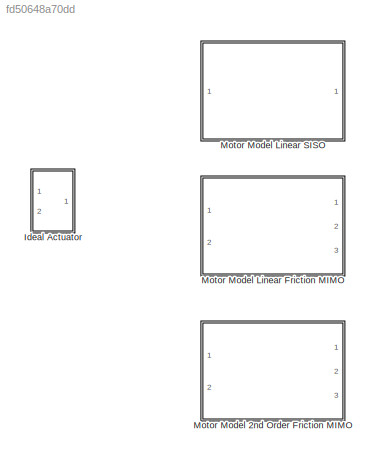
MODEL slx_fd50648a70dd
KIND library
CONFIG AbsTol = auto
CONFIG FixedStep = auto
CONFIG MaxStep = auto
CONFIG MinStep = auto
CONFIG RelTol = 1e-3
CONFIG SampleTimeConstraint = Unconstrained
CONFIG Solver = VariableStepAuto
CONFIG SolverMode = Auto
CONFIG SolverName = VariableStepAuto
CONFIG StartTime = 0.0
CONFIG StopTime = 10.0
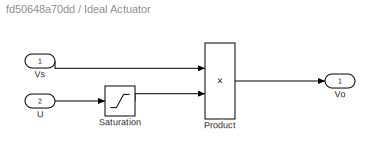
BLOCK [SubSystem] Ideal Actuator
  Ports = [2, 1]
  RequestExecContextInheritance = off
  Variant = off
BLOCK [Product] Ideal Actuator/Product
  InputSameDT = off
  OutDataTypeStr = Inherit: Inherit via internal rule
  Ports = [2, 1]
  RndMeth = Floor
  SaturateOnIntegerOverflow = off
BLOCK [Saturate] Ideal Actuator/Saturation
  InputPortMap = u0
  LowerLimit = -1
  Ports = [1, 1]
  UpperLimit = 1
BLOCK [Inport] Ideal Actuator/U
  IconDisplay = Port number
  Port = 2
BLOCK [Outport] Ideal Actuator/Vo
  IconDisplay = Port number
BLOCK [Inport] Ideal Actuator/Vs
  IconDisplay = Port number
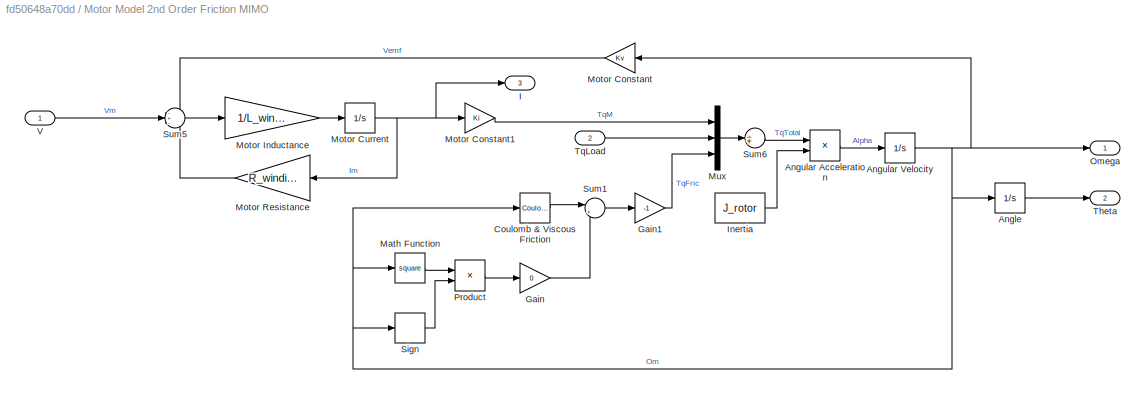
BLOCK [SubSystem] Motor Model 2nd Order Friction MIMO
  Ports = [2, 3]
  RequestExecContextInheritance = off
  Variant = off
BLOCK [Integrator] Motor Model 2nd Order Friction MIMO/Angle
  Ports = [1, 1]
  WrapState = on
  WrappedStateLowerValue = 0
  WrappedStateUpperValue = 2*pi
BLOCK [Product] Motor Model 2nd Order Friction MIMO/Angular Acceleration
  InputSameDT = off
  Inputs = */
  OutDataTypeStr = Inherit: Inherit via internal rule
  Ports = [2, 1]
  RndMeth = Floor
  SaturateOnIntegerOverflow = off
BLOCK [Integrator] Motor Model 2nd Order Friction MIMO/Angular Velocity
  AttributesFormatString = y0: %<InitialCondition>
  InitialCondition = Om_initial
  Ports = [1, 1]
BLOCK [Reference] Motor Model 2nd Order Friction MIMO/Coulomb & Viscous Friction  REF=simulink/Discontinuities/Coulomb &
Viscous Friction
  Ports = [1, 1]
  SourceBlock = simulink/Discontinuities/Coulomb &\nViscous Friction
  SourceType = Coulombic and Viscous Friction
BLOCK [Gain] Motor Model 2nd Order Friction MIMO/Gain
  Gain = 0
  OutDataTypeStr = Inherit: Inherit via internal rule
  ParamDataTypeStr = Inherit: Inherit via internal rule
  SaturateOnIntegerOverflow = off
BLOCK [Gain] Motor Model 2nd Order Friction MIMO/Gain1
  Gain = -1
  OutDataTypeStr = Inherit: Inherit via internal rule
  ParamDataTypeStr = Inherit: Inherit via internal rule
  SaturateOnIntegerOverflow = off
BLOCK [Outport] Motor Model 2nd Order Friction MIMO/I
  IconDisplay = Port number
  Port = 3
BLOCK [Constant] Motor Model 2nd Order Friction MIMO/Inertia
  Value = J_rotor
BLOCK [Math] Motor Model 2nd Order Friction MIMO/Math Function
  Operator = square
  Ports = [1, 1]
BLOCK [Gain] Motor Model 2nd Order Friction MIMO/Motor Constant
  Gain = Kv
  OutDataTypeStr = Inherit: Inherit via internal rule
  ParamDataTypeStr = Inherit: Inherit via internal rule
  SaturateOnIntegerOverflow = off
BLOCK [Gain] Motor Model 2nd Order Friction MIMO/Motor Constant1
  Gain = Ki
  OutDataTypeStr = Inherit: Inherit via internal rule
  ParamDataTypeStr = Inherit: Inherit via internal rule
  SaturateOnIntegerOverflow = off
BLOCK [Integrator] Motor Model 2nd Order Friction MIMO/Motor Current
  AttributesFormatString = y0: %<InitialCondition>
  InitialCondition = I_initial
  Ports = [1, 1]
BLOCK [Gain] Motor Model 2nd Order Friction MIMO/Motor Inductance
  Gain = 1/L_winding
  OutDataTypeStr = Inherit: Inherit via internal rule
  ParamDataTypeStr = Inherit: Inherit via internal rule
  SaturateOnIntegerOverflow = off
BLOCK [Gain] Motor Model 2nd Order Friction MIMO/Motor Resistance
  Gain = R_winding
  OutDataTypeStr = Inherit: Inherit via internal rule
  ParamDataTypeStr = Inherit: Inherit via internal rule
  SaturateOnIntegerOverflow = off
BLOCK [Mux] Motor Model 2nd Order Friction MIMO/Mux
  DisplayOption = bar
  Inputs = 3
  Ports = [3, 1]
BLOCK [Outport] Motor Model 2nd Order Friction MIMO/Omega
  IconDisplay = Port number
BLOCK [Product] Motor Model 2nd Order Friction MIMO/Product
  InputSameDT = off
  OutDataTypeStr = Inherit: Inherit via internal rule
  Ports = [2, 1]
  RndMeth = Floor
  SaturateOnIntegerOverflow = off
BLOCK [Signum] Motor Model 2nd Order Friction MIMO/Sign
BLOCK [Sum] Motor Model 2nd Order Friction MIMO/Sum1
  IconShape = round
  InputSameDT = off
  Inputs = |++
  OutDataTypeStr = Inherit: Inherit via internal rule
  Ports = [2, 1]
  SaturateOnIntegerOverflow = off
BLOCK [Sum] Motor Model 2nd Order Friction MIMO/Sum5
  IconShape = round
  InputSameDT = off
  Inputs = -+-
  OutDataTypeStr = Inherit: Inherit via internal rule
  Ports = [3, 1]
  SaturateOnIntegerOverflow = off
BLOCK [Sum] Motor Model 2nd Order Friction MIMO/Sum6
  IconShape = round
  InputSameDT = off
  Inputs = 1
  OutDataTypeStr = Inherit: Inherit via internal rule
  Ports = [1, 1]
  SaturateOnIntegerOverflow = off
BLOCK [Outport] Motor Model 2nd Order Friction MIMO/Theta
  IconDisplay = Port number
  Port = 2
BLOCK [Inport] Motor Model 2nd Order Friction MIMO/TqLoad
  IconDisplay = Port number
  Port = 2
BLOCK [Inport] Motor Model 2nd Order Friction MIMO/V
  IconDisplay = Port number
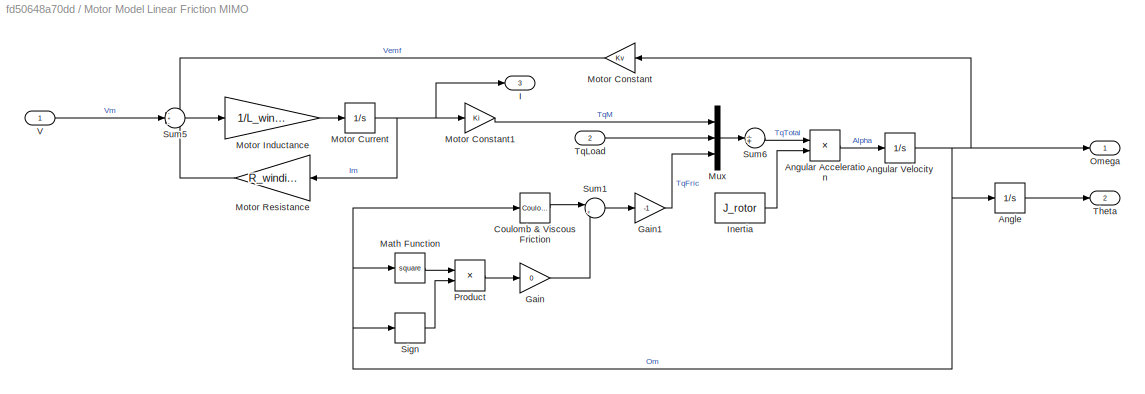
BLOCK [SubSystem] Motor Model Linear Friction MIMO
  Ports = [2, 3]
  RequestExecContextInheritance = off
  Variant = off
BLOCK [Integrator] Motor Model Linear Friction MIMO/Angle
  Ports = [1, 1]
  WrapState = on
BLOCK [Product] Motor Model Linear Friction MIMO/Angular Acceleration
  InputSameDT = off
  Inputs = */
  OutDataTypeStr = Inherit: Inherit via internal rule
  Ports = [2, 1]
  RndMeth = Floor
  SaturateOnIntegerOverflow = off
BLOCK [Integrator] Motor Model Linear Friction MIMO/Angular Velocity
  AttributesFormatString = y0: %<InitialCondition>
  InitialCondition = Om_initial
  Ports = [1, 1]
BLOCK [Reference] Motor Model Linear Friction MIMO/Coulomb & Viscous Friction  REF=simulink/Discontinuities/Coulomb &
Viscous Friction
  Ports = [1, 1]
  SourceBlock = simulink/Discontinuities/Coulomb &\nViscous Friction
  SourceType = Coulombic and Viscous Friction
BLOCK [Gain] Motor Model Linear Friction MIMO/Gain
  Gain = 0
  OutDataTypeStr = Inherit: Inherit via internal rule
  ParamDataTypeStr = Inherit: Inherit via internal rule
  SaturateOnIntegerOverflow = off
BLOCK [Gain] Motor Model Linear Friction MIMO/Gain1
  Gain = -1
  OutDataTypeStr = Inherit: Inherit via internal rule
  ParamDataTypeStr = Inherit: Inherit via internal rule
  SaturateOnIntegerOverflow = off
BLOCK [Outport] Motor Model Linear Friction MIMO/I
  IconDisplay = Port number
  Port = 3
BLOCK [Constant] Motor Model Linear Friction MIMO/Inertia
  Value = J_rotor
BLOCK [Math] Motor Model Linear Friction MIMO/Math Function
  Operator = square
  Ports = [1, 1]
BLOCK [Gain] Motor Model Linear Friction MIMO/Motor Constant
  Gain = Kv
  OutDataTypeStr = Inherit: Inherit via internal rule
  ParamDataTypeStr = Inherit: Inherit via internal rule
  SaturateOnIntegerOverflow = off
BLOCK [Gain] Motor Model Linear Friction MIMO/Motor Constant1
  Gain = Ki
  OutDataTypeStr = Inherit: Inherit via internal rule
  ParamDataTypeStr = Inherit: Inherit via internal rule
  SaturateOnIntegerOverflow = off
BLOCK [Integrator] Motor Model Linear Friction MIMO/Motor Current
  AttributesFormatString = y0: %<InitialCondition>
  InitialCondition = I_initial
  Ports = [1, 1]
BLOCK [Gain] Motor Model Linear Friction MIMO/Motor Inductance
  Gain = 1/L_winding
  OutDataTypeStr = Inherit: Inherit via internal rule
  ParamDataTypeStr = Inherit: Inherit via internal rule
  SaturateOnIntegerOverflow = off
BLOCK [Gain] Motor Model Linear Friction MIMO/Motor Resistance
  Gain = R_winding
  OutDataTypeStr = Inherit: Inherit via internal rule
  ParamDataTypeStr = Inherit: Inherit via internal rule
  SaturateOnIntegerOverflow = off
BLOCK [Mux] Motor Model Linear Friction MIMO/Mux
  DisplayOption = bar
  Inputs = 3
  Ports = [3, 1]
BLOCK [Outport] Motor Model Linear Friction MIMO/Omega
  IconDisplay = Port number
BLOCK [Product] Motor Model Linear Friction MIMO/Product
  InputSameDT = off
  OutDataTypeStr = Inherit: Inherit via internal rule
  Ports = [2, 1]
  RndMeth = Floor
  SaturateOnIntegerOverflow = off
BLOCK [Signum] Motor Model Linear Friction MIMO/Sign
BLOCK [Sum] Motor Model Linear Friction MIMO/Sum1
  IconShape = round
  InputSameDT = off
  Inputs = |++
  OutDataTypeStr = Inherit: Inherit via internal rule
  Ports = [2, 1]
  SaturateOnIntegerOverflow = off
BLOCK [Sum] Motor Model Linear Friction MIMO/Sum5
  IconShape = round
  InputSameDT = off
  Inputs = -+-
  OutDataTypeStr = Inherit: Inherit via internal rule
  Ports = [3, 1]
  SaturateOnIntegerOverflow = off
BLOCK [Sum] Motor Model Linear Friction MIMO/Sum6
  IconShape = round
  InputSameDT = off
  Inputs = 1
  OutDataTypeStr = Inherit: Inherit via internal rule
  Ports = [1, 1]
  SaturateOnIntegerOverflow = off
BLOCK [Outport] Motor Model Linear Friction MIMO/Theta
  IconDisplay = Port number
  Port = 2
BLOCK [Inport] Motor Model Linear Friction MIMO/TqLoad
  IconDisplay = Port number
  Port = 2
BLOCK [Inport] Motor Model Linear Friction MIMO/V
  IconDisplay = Port number
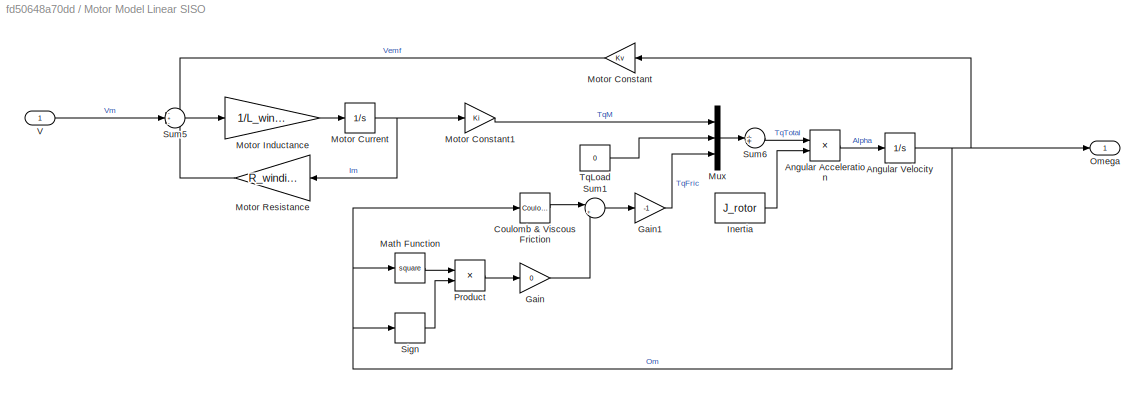
BLOCK [SubSystem] Motor Model Linear SISO
  Ports = [1, 1]
  RequestExecContextInheritance = off
  Variant = off
BLOCK [Product] Motor Model Linear SISO/Angular Acceleration
  InputSameDT = off
  Inputs = */
  OutDataTypeStr = Inherit: Inherit via internal rule
  Ports = [2, 1]
  RndMeth = Floor
  SaturateOnIntegerOverflow = off
BLOCK [Integrator] Motor Model Linear SISO/Angular Velocity
  AttributesFormatString = y0: %<InitialCondition>
  InitialCondition = Om_initial
  Ports = [1, 1]
BLOCK [Reference] Motor Model Linear SISO/Coulomb & Viscous Friction  REF=simulink/Discontinuities/Coulomb &
Viscous Friction
  Ports = [1, 1]
  SourceBlock = simulink/Discontinuities/Coulomb &\nViscous Friction
  SourceType = Coulombic and Viscous Friction
BLOCK [Gain] Motor Model Linear SISO/Gain
  Gain = 0
  OutDataTypeStr = Inherit: Inherit via internal rule
  ParamDataTypeStr = Inherit: Inherit via internal rule
  SaturateOnIntegerOverflow = off
BLOCK [Gain] Motor Model Linear SISO/Gain1
  Gain = -1
  OutDataTypeStr = Inherit: Inherit via internal rule
  ParamDataTypeStr = Inherit: Inherit via internal rule
  SaturateOnIntegerOverflow = off
BLOCK [Constant] Motor Model Linear SISO/Inertia
  Value = J_rotor
BLOCK [Math] Motor Model Linear SISO/Math Function
  Operator = square
  Ports = [1, 1]
BLOCK [Gain] Motor Model Linear SISO/Motor Constant
  Gain = Kv
  OutDataTypeStr = Inherit: Inherit via internal rule
  ParamDataTypeStr = Inherit: Inherit via internal rule
  SaturateOnIntegerOverflow = off
BLOCK [Gain] Motor Model Linear SISO/Motor Constant1
  Gain = Ki
  OutDataTypeStr = Inherit: Inherit via internal rule
  ParamDataTypeStr = Inherit: Inherit via internal rule
  SaturateOnIntegerOverflow = off
BLOCK [Integrator] Motor Model Linear SISO/Motor Current
  AttributesFormatString = y0: %<InitialCondition>
  InitialCondition = I_initial
  Ports = [1, 1]
BLOCK [Gain] Motor Model Linear SISO/Motor Inductance
  Gain = 1/L_winding
  OutDataTypeStr = Inherit: Inherit via internal rule
  ParamDataTypeStr = Inherit: Inherit via internal rule
  SaturateOnIntegerOverflow = off
BLOCK [Gain] Motor Model Linear SISO/Motor Resistance
  Gain = R_winding
  OutDataTypeStr = Inherit: Inherit via internal rule
  ParamDataTypeStr = Inherit: Inherit via internal rule
  SaturateOnIntegerOverflow = off
BLOCK [Mux] Motor Model Linear SISO/Mux
  DisplayOption = bar
  Inputs = 3
  Ports = [3, 1]
BLOCK [Outport] Motor Model Linear SISO/Omega
  IconDisplay = Port number
BLOCK [Product] Motor Model Linear SISO/Product
  InputSameDT = off
  OutDataTypeStr = Inherit: Inherit via internal rule
  Ports = [2, 1]
  RndMeth = Floor
  SaturateOnIntegerOverflow = off
BLOCK [Signum] Motor Model Linear SISO/Sign
BLOCK [Sum] Motor Model Linear SISO/Sum1
  IconShape = round
  InputSameDT = off
  Inputs = |++
  OutDataTypeStr = Inherit: Inherit via internal rule
  Ports = [2, 1]
  SaturateOnIntegerOverflow = off
BLOCK [Sum] Motor Model Linear SISO/Sum5
  IconShape = round
  InputSameDT = off
  Inputs = -+-
  OutDataTypeStr = Inherit: Inherit via internal rule
  Ports = [3, 1]
  SaturateOnIntegerOverflow = off
BLOCK [Sum] Motor Model Linear SISO/Sum6
  IconShape = round
  InputSameDT = off
  Inputs = 1
  OutDataTypeStr = Inherit: Inherit via internal rule
  Ports = [1, 1]
  SaturateOnIntegerOverflow = off
BLOCK [Constant] Motor Model Linear SISO/TqLoad
  Value = 0
BLOCK [Inport] Motor Model Linear SISO/V
  IconDisplay = Port number
LINE Ideal Actuator/Product:1 -> Ideal Actuator/Vo:1
LINE Ideal Actuator/Saturation:1 -> Ideal Actuator/Product:2
LINE Ideal Actuator/U:1 -> Ideal Actuator/Saturation:1
LINE Ideal Actuator/Vs:1 -> Ideal Actuator/Product:1
LINE Motor Model 2nd Order Friction MIMO/Angle:1 -> Motor Model 2nd Order Friction MIMO/Theta:1
LINE Motor Model 2nd Order Friction MIMO/Angular Acceleration:1 -> Motor Model 2nd Order Friction MIMO/Angular Velocity:1
NET Motor Model 2nd Order Friction MIMO/Angular Velocity:1 -> Motor Model 2nd Order Friction MIMO/Angle:1, Motor Model 2nd Order Friction MIMO/Coulomb & Viscous Friction:1, Motor Model 2nd Order Friction MIMO/Math Function:1, Motor Model 2nd Order Friction MIMO/Motor Constant:1, Motor Model 2nd Order Friction MIMO/Omega:1, Motor Model 2nd Order Friction MIMO/Sign:1
LINE Motor Model 2nd Order Friction MIMO/Coulomb & Viscous Friction:1 -> Motor Model 2nd Order Friction MIMO/Sum1:1
LINE Motor Model 2nd Order Friction MIMO/Gain1:1 -> Motor Model 2nd Order Friction MIMO/Mux:3
LINE Motor Model 2nd Order Friction MIMO/Gain:1 -> Motor Model 2nd Order Friction MIMO/Sum1:2
LINE Motor Model 2nd Order Friction MIMO/Inertia:1 -> Motor Model 2nd Order Friction MIMO/Angular Acceleration:2
LINE Motor Model 2nd Order Friction MIMO/Math Function:1 -> Motor Model 2nd Order Friction MIMO/Product:1
LINE Motor Model 2nd Order Friction MIMO/Motor Constant1:1 -> Motor Model 2nd Order Friction MIMO/Mux:1
LINE Motor Model 2nd Order Friction MIMO/Motor Constant:1 -> Motor Model 2nd Order Friction MIMO/Sum5:1
NET Motor Model 2nd Order Friction MIMO/Motor Current:1 -> Motor Model 2nd Order Friction MIMO/I:1, Motor Model 2nd Order Friction MIMO/Motor Constant1:1, Motor Model 2nd Order Friction MIMO/Motor Resistance:1
LINE Motor Model 2nd Order Friction MIMO/Motor Inductance:1 -> Motor Model 2nd Order Friction MIMO/Motor Current:1
LINE Motor Model 2nd Order Friction MIMO/Motor Resistance:1 -> Motor Model 2nd Order Friction MIMO/Sum5:3
LINE Motor Model 2nd Order Friction MIMO/Mux:1 -> Motor Model 2nd Order Friction MIMO/Sum6:1
LINE Motor Model 2nd Order Friction MIMO/Product:1 -> Motor Model 2nd Order Friction MIMO/Gain:1
LINE Motor Model 2nd Order Friction MIMO/Sign:1 -> Motor Model 2nd Order Friction MIMO/Product:2
LINE Motor Model 2nd Order Friction MIMO/Sum1:1 -> Motor Model 2nd Order Friction MIMO/Gain1:1
LINE Motor Model 2nd Order Friction MIMO/Sum5:1 -> Motor Model 2nd Order Friction MIMO/Motor Inductance:1
LINE Motor Model 2nd Order Friction MIMO/Sum6:1 -> Motor Model 2nd Order Friction MIMO/Angular Acceleration:1
LINE Motor Model 2nd Order Friction MIMO/TqLoad:1 -> Motor Model 2nd Order Friction MIMO/Mux:2
LINE Motor Model 2nd Order Friction MIMO/V:1 -> Motor Model 2nd Order Friction MIMO/Sum5:2
LINE Motor Model Linear Friction MIMO/Angle:1 -> Motor Model Linear Friction MIMO/Theta:1
LINE Motor Model Linear Friction MIMO/Angular Acceleration:1 -> Motor Model Linear Friction MIMO/Angular Velocity:1
NET Motor Model Linear Friction MIMO/Angular Velocity:1 -> Motor Model Linear Friction MIMO/Angle:1, Motor Model Linear Friction MIMO/Coulomb & Viscous Friction:1, Motor Model Linear Friction MIMO/Math Function:1, Motor Model Linear Friction MIMO/Motor Constant:1, Motor Model Linear Friction MIMO/Omega:1, Motor Model Linear Friction MIMO/Sign:1
LINE Motor Model Linear Friction MIMO/Coulomb & Viscous Friction:1 -> Motor Model Linear Friction MIMO/Sum1:1
LINE Motor Model Linear Friction MIMO/Gain1:1 -> Motor Model Linear Friction MIMO/Mux:3
LINE Motor Model Linear Friction MIMO/Gain:1 -> Motor Model Linear Friction MIMO/Sum1:2
LINE Motor Model Linear Friction MIMO/Inertia:1 -> Motor Model Linear Friction MIMO/Angular Acceleration:2
LINE Motor Model Linear Friction MIMO/Math Function:1 -> Motor Model Linear Friction MIMO/Product:1
LINE Motor Model Linear Friction MIMO/Motor Constant1:1 -> Motor Model Linear Friction MIMO/Mux:1
LINE Motor Model Linear Friction MIMO/Motor Constant:1 -> Motor Model Linear Friction MIMO/Sum5:1
NET Motor Model Linear Friction MIMO/Motor Current:1 -> Motor Model Linear Friction MIMO/I:1, Motor Model Linear Friction MIMO/Motor Constant1:1, Motor Model Linear Friction MIMO/Motor Resistance:1
LINE Motor Model Linear Friction MIMO/Motor Inductance:1 -> Motor Model Linear Friction MIMO/Motor Current:1
LINE Motor Model Linear Friction MIMO/Motor Resistance:1 -> Motor Model Linear Friction MIMO/Sum5:3
LINE Motor Model Linear Friction MIMO/Mux:1 -> Motor Model Linear Friction MIMO/Sum6:1
LINE Motor Model Linear Friction MIMO/Product:1 -> Motor Model Linear Friction MIMO/Gain:1
LINE Motor Model Linear Friction MIMO/Sign:1 -> Motor Model Linear Friction MIMO/Product:2
LINE Motor Model Linear Friction MIMO/Sum1:1 -> Motor Model Linear Friction MIMO/Gain1:1
LINE Motor Model Linear Friction MIMO/Sum5:1 -> Motor Model Linear Friction MIMO/Motor Inductance:1
LINE Motor Model Linear Friction MIMO/Sum6:1 -> Motor Model Linear Friction MIMO/Angular Acceleration:1
LINE Motor Model Linear Friction MIMO/TqLoad:1 -> Motor Model Linear Friction MIMO/Mux:2
LINE Motor Model Linear Friction MIMO/V:1 -> Motor Model Linear Friction MIMO/Sum5:2
LINE Motor Model Linear SISO/Angular Acceleration:1 -> Motor Model Linear SISO/Angular Velocity:1
NET Motor Model Linear SISO/Angular Velocity:1 -> Motor Model Linear SISO/Coulomb & Viscous Friction:1, Motor Model Linear SISO/Math Function:1, Motor Model Linear SISO/Motor Constant:1, Motor Model Linear SISO/Omega:1, Motor Model Linear SISO/Sign:1
LINE Motor Model Linear SISO/Coulomb & Viscous Friction:1 -> Motor Model Linear SISO/Sum1:1
LINE Motor Model Linear SISO/Gain1:1 -> Motor Model Linear SISO/Mux:3
LINE Motor Model Linear SISO/Gain:1 -> Motor Model Linear SISO/Sum1:2
LINE Motor Model Linear SISO/Inertia:1 -> Motor Model Linear SISO/Angular Acceleration:2
LINE Motor Model Linear SISO/Math Function:1 -> Motor Model Linear SISO/Product:1
LINE Motor Model Linear SISO/Motor Constant1:1 -> Motor Model Linear SISO/Mux:1
LINE Motor Model Linear SISO/Motor Constant:1 -> Motor Model Linear SISO/Sum5:1
NET Motor Model Linear SISO/Motor Current:1 -> Motor Model Linear SISO/Motor Constant1:1, Motor Model Linear SISO/Motor Resistance:1
LINE Motor Model Linear SISO/Motor Inductance:1 -> Motor Model Linear SISO/Motor Current:1
LINE Motor Model Linear SISO/Motor Resistance:1 -> Motor Model Linear SISO/Sum5:3
LINE Motor Model Linear SISO/Mux:1 -> Motor Model Linear SISO/Sum6:1
LINE Motor Model Linear SISO/Product:1 -> Motor Model Linear SISO/Gain:1
LINE Motor Model Linear SISO/Sign:1 -> Motor Model Linear SISO/Product:2
LINE Motor Model Linear SISO/Sum1:1 -> Motor Model Linear SISO/Gain1:1
LINE Motor Model Linear SISO/Sum5:1 -> Motor Model Linear SISO/Motor Inductance:1
LINE Motor Model Linear SISO/Sum6:1 -> Motor Model Linear SISO/Angular Acceleration:1
LINE Motor Model Linear SISO/TqLoad:1 -> Motor Model Linear SISO/Mux:2
LINE Motor Model Linear SISO/V:1 -> Motor Model Linear SISO/Sum5:2
note: NET lines group one-source signal fan-out (src -> all destinations, sorted); 1:1 wires keep LINE
